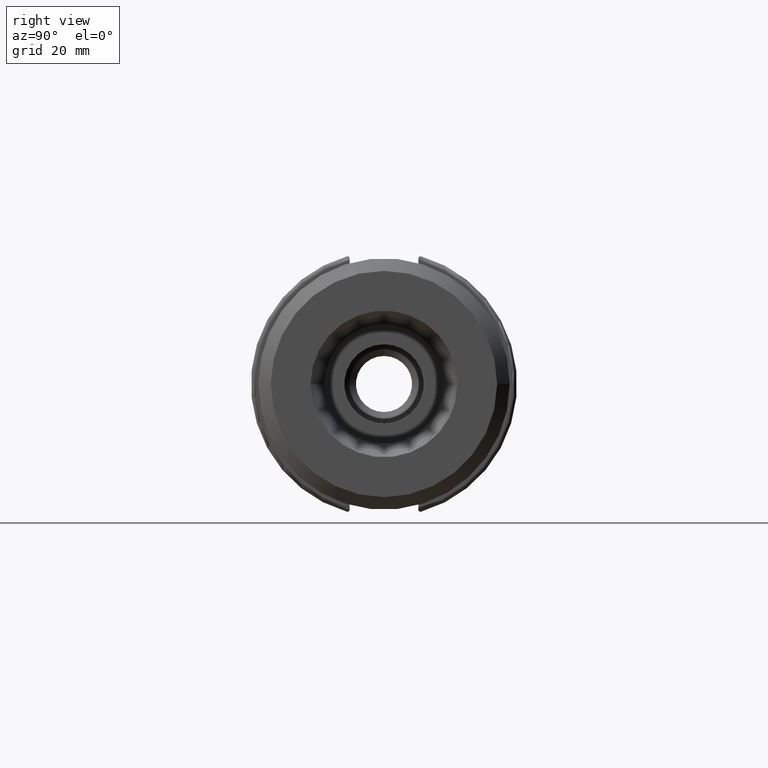
[diagram: clean part render]
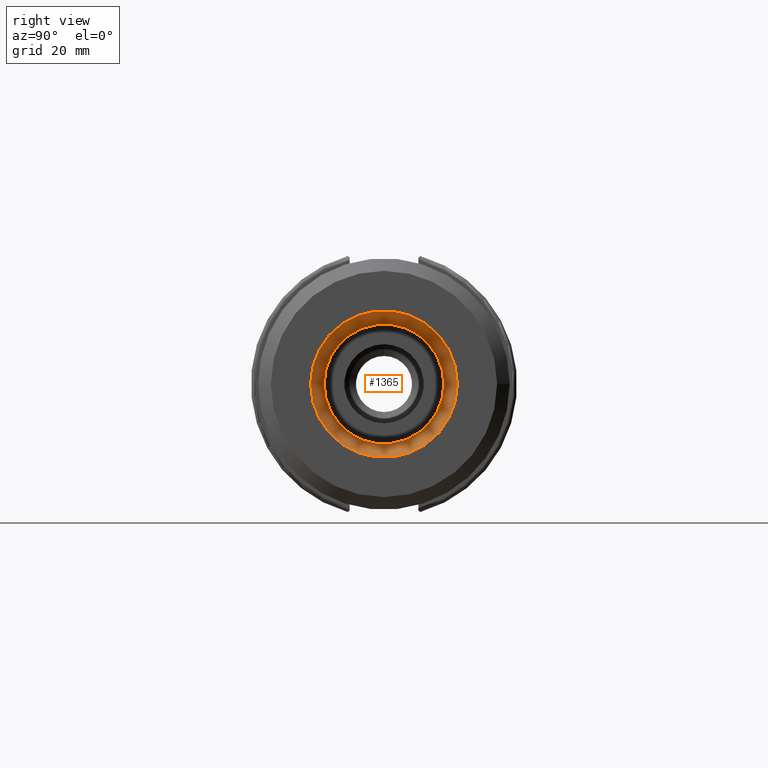
[diagram: same view with one face highlighted and labeled with its STEP entity id]
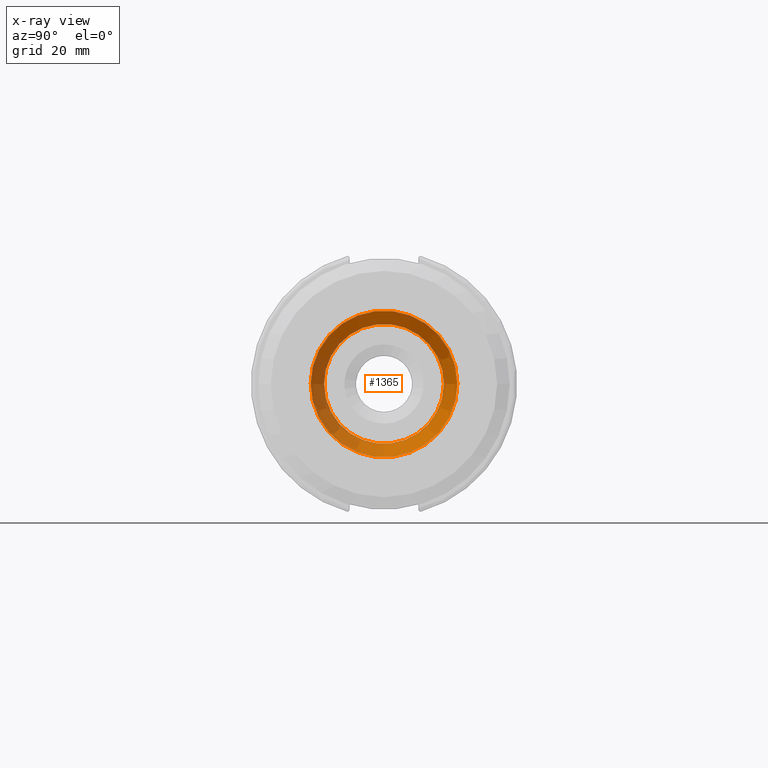
[diagram: x-ray of the same camera — body ghosted, the highlighted face saturated]
A machine part, right view. The second image highlights one B-rep face of the part: STEP entity #1365.
The next image is the same camera in x-ray: the body ghosted, the highlighted face saturated — about 0% of this face is hidden behind the body in this view.
In plain terms, the highlighted conical surface has half-angle 4 deg.
Its self-contained STEP definition (entity closure, byte-faithful):
#357=FACE_OUTER_BOUND('',#431,.T.);
#431=EDGE_LOOP('',(#1025,#1026,#1027,#1028));
#509=LINE('',#2144,#586);
#586=VECTOR('',#1744,15.9441284342569);
#665=CIRCLE('',#1549,14.2833666505985);
#668=CIRCLE('',#1555,17.5);
#729=VERTEX_POINT('',#2131);
#732=VERTEX_POINT('',#2141);
#843=EDGE_CURVE('',#729,#729,#665,.T.);
#847=EDGE_CURVE('',#732,#732,#668,.T.);
#848=EDGE_CURVE('',#732,#729,#509,.T.);
#1025=ORIENTED_EDGE('',*,*,#847,.T.);
#1026=ORIENTED_EDGE('',*,*,#848,.T.);
#1027=ORIENTED_EDGE('',*,*,#843,.T.);
#1028=ORIENTED_EDGE('',*,*,#848,.F.);
#1347=CONICAL_SURFACE('',#1556,15.9441284342569,0.0698131700797734);
#1365=ADVANCED_FACE('',(#357),#1347,.F.);
#1549=AXIS2_PLACEMENT_3D('',#2132,#1727,#1728);
#1555=AXIS2_PLACEMENT_3D('',#2142,#1740,#1741);
#1556=AXIS2_PLACEMENT_3D('',#2143,#1742,#1743);
#1727=DIRECTION('center_axis',(-1.,0.,0.));
#1728=DIRECTION('ref_axis',(0.,0.,1.));
#1740=DIRECTION('center_axis',(1.,0.,0.));
#1741=DIRECTION('ref_axis',(0.,0.,-1.));
#1742=DIRECTION('center_axis',(1.,0.,0.));
#1743=DIRECTION('ref_axis',(0.,1.,0.));
#1744=DIRECTION('',(-0.997564050259824,0.0697564737441255,8.54270422905497E-18));
#2131=CARTESIAN_POINT('',(17.55,-14.2833666505985,-1.74920792497035E-15));
#2132=CARTESIAN_POINT('Origin',(17.55,0.,0.));
#2141=CARTESIAN_POINT('',(63.55,-17.5,-2.14313189850787E-15));
#2142=CARTESIAN_POINT('Origin',(63.55,0.,0.));
#2143=CARTESIAN_POINT('Origin',(41.3,0.,0.));
#2144=CARTESIAN_POINT('',(41.3,-15.9441284342569,-1.9525925852207E-15));